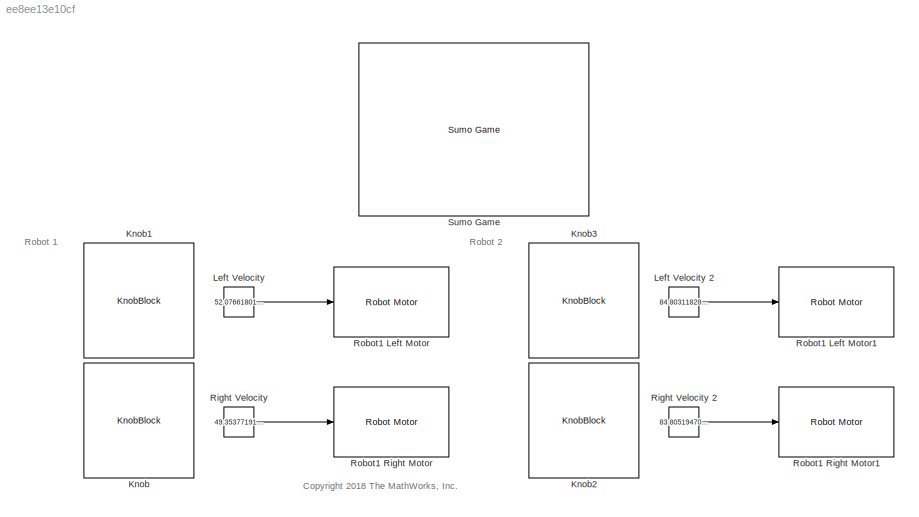
MODEL slx_ee8ee13e10cf
KIND model
CONFIG AbsTol = auto
CONFIG EnableMultiTasking = on
CONFIG FixedStep = 0.05
CONFIG MaxStep = auto
CONFIG MinStep = auto
CONFIG RelTol = 1e-3
CONFIG SampleTimeConstraint = Unconstrained
CONFIG Solver = ode15s
CONFIG SolverName = ode15s
CONFIG StartTime = 0.0
CONFIG StopTime = 10
BLOCK [KnobBlock] Knob
  ScaleMax = 127
  ScaleMin = -127
BLOCK [KnobBlock] Knob1
  ScaleMax = 127
  ScaleMin = -127
BLOCK [KnobBlock] Knob2
  ScaleMax = 127
  ScaleMin = -127
BLOCK [KnobBlock] Knob3
  ScaleMax = 127
  ScaleMin = -127
BLOCK [Constant] Left Velocity
  Value = 52.076618019504
BLOCK [Constant] Left Velocity 2
  Value = 84.803118286133
BLOCK [Constant] Right Velocity
  Value = 49.353771916848
BLOCK [Constant] Right Velocity 2
  Value = 83.805194702148
BLOCK [Reference] Robot1 Left Motor  REF=RoboticsPlayground/Basic Sensors and Actuators/Robot Motor
  Ports = [1]
  SourceBlock = RoboticsPlayground/Basic Sensors and Actuators/Robot Motor
  SourceProductName = Robotics Playground
  SourceType = RP Robot Motor
BLOCK [Reference] Robot1 Left Motor1  REF=RoboticsPlayground/Basic Sensors and Actuators/Robot Motor
  Ports = [1]
  SourceBlock = RoboticsPlayground/Basic Sensors and Actuators/Robot Motor
  SourceProductName = Robotics Playground
  SourceType = RP Robot Motor
BLOCK [Reference] Robot1 Right Motor  REF=RoboticsPlayground/Basic Sensors and Actuators/Robot Motor
  Ports = [1]
  SourceBlock = RoboticsPlayground/Basic Sensors and Actuators/Robot Motor
  SourceProductName = Robotics Playground
  SourceType = RP Robot Motor
BLOCK [Reference] Robot1 Right Motor1  REF=RoboticsPlayground/Basic Sensors and Actuators/Robot Motor
  Ports = [1]
  SourceBlock = RoboticsPlayground/Basic Sensors and Actuators/Robot Motor
  SourceProductName = Robotics Playground
  SourceType = RP Robot Motor
BLOCK [Reference] Sumo Game  REF=RoboticsPlayground/Environments/Sumo Game
  Ports = []
  SourceBlock = RoboticsPlayground/Environments/Sumo Game
  SourceProductName = Robotics Playground
  SourceType = RP Sumo Game
ANNOTATION (root): <copyright redacted>
ANNOTATION (root): Robot 1
ANNOTATION (root): Robot 2
LINE Left Velocity 2:1 -> Robot1 Left Motor1:1
LINE Left Velocity:1 -> Robot1 Left Motor:1
LINE Right Velocity 2:1 -> Robot1 Right Motor1:1
LINE Right Velocity:1 -> Robot1 Right Motor:1
